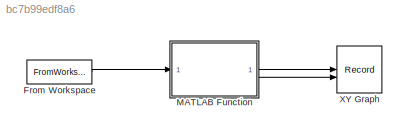
MODEL slx_bc7b99edf8a6
KIND model
CONFIG AbsTol = auto
CONFIG EnableMultiTasking = off
CONFIG FixedStep = auto
CONFIG MaxStep = auto
CONFIG MinStep = auto
CONFIG RelTol = 1e-3
CONFIG SampleTimeConstraint = Unconstrained
CONFIG SolverName = VariableStepAuto
CONFIG StartTime = 0.0
CONFIG StopTime = 10.0
BLOCK [FromWorkspace] From Workspace
  VariableName = gesture_code
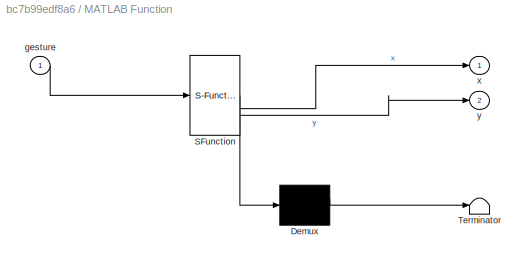
BLOCK [SubSystem] MATLAB Function
  ErrorFcn = Stateflow.Translate.translate
  LibrarySourceBlock = simulink/User-Defined\nFunctions/MATLAB Function
  PermitHierarchicalResolution = ExplicitOnly
  SFBlockType = MATLAB Function
  TreatAsAtomicUnit = on
BLOCK [Demux] MATLAB Function/ Demux 
  Outputs = 1
BLOCK [S-Function] MATLAB Function/ SFunction 
  EnableBusSupport = on
  FunctionName = sf_sfun
  PortCounts = [1 3]
  SFcnIsStateOwnerBlock = off
  SFunctionDeploymentMode = off
  Tag = Stateflow S-Function 2
BLOCK [Terminator] MATLAB Function/ Terminator 
BLOCK [Inport] MATLAB Function/gesture
BLOCK [Outport] MATLAB Function/x
BLOCK [Outport] MATLAB Function/y
  Port = 2
BLOCK [Record] XY Graph
  CompatibilityTag = XY
  FileSettingsInternal = {"entries":[{"content":{"excelSettings":{"content":{},"type":"Streamout.ExcelSettings"}},"type":"Streamout.FileSettingStorage","uuid":"0f0b0dc1-b5c1-4faa-8076-eea6360c50e4"}],"packageUris":["http://schema.mathworks.com/mf0/streamout_blocks/R2020a"],"version":"1.0"}
  Layout = [1 1]
  SignalsInternal = {"entries":[{"content":{"signals":[{"content":{"blockPath":["untitled/XY Graph"],"channel":[],"dimensions":[1],"domain":"untitled/XY Graph","lineColor":"#a2142f","plots":[1],"port":1,"sid":[""],"signalID":427,"signalName":"MATLAB Function:1"},"type":"RecordBlkView.Signal","uuid":"1473d953-14e0-446b-b7a8-ef4117f354ee"},{"content":{"blockPath":["untitled/XY Graph"],"channel":[],"dimensions":[1],"dom...<+381ch>
  VisualizationBindings = {"xyplotplugin":{"info":[{"series":[{"bindingParametersList":[{"parameter":"X-Axis","signalID":427,"signalName":"MATLAB Function:1"},{"parameter":"Y-Axis","signalID":431,"signalName":"MATLAB Function:2"}],"seriesID":36605}],"subplotID":1}]}}
LINE From Workspace:1 -> MATLAB Function:1
LINE MATLAB Function:1 -> XY Graph:1
LINE MATLAB Function:2 -> XY Graph:2
CHART MATLAB Function states=1 transitions=1
  STATE_LABEL 'eML_blk_kernel()'
  STATE_LABEL 'SCRIPT:\nfunction [x, y] = moveRobot(gesture)\n% Simulates robot movement based on gesture input\n\npersistent xpos ypos angle\n\nif isempty(xpos)\n    xpos = 0;\n    ypos = 0;\n    angle = 0; % Facing right\nend\n\n% Motion step size\nstep = 0.5;\n\nswitch gesture\n    case 1 % Forward\n        xpos = xpos + step * cosd(angle);\n        ypos = ypos + step * sind(angle);\n    case 2 % Turn Left\n        angle = angle...<+224ch>'
CHART  states=0 transitions=0
